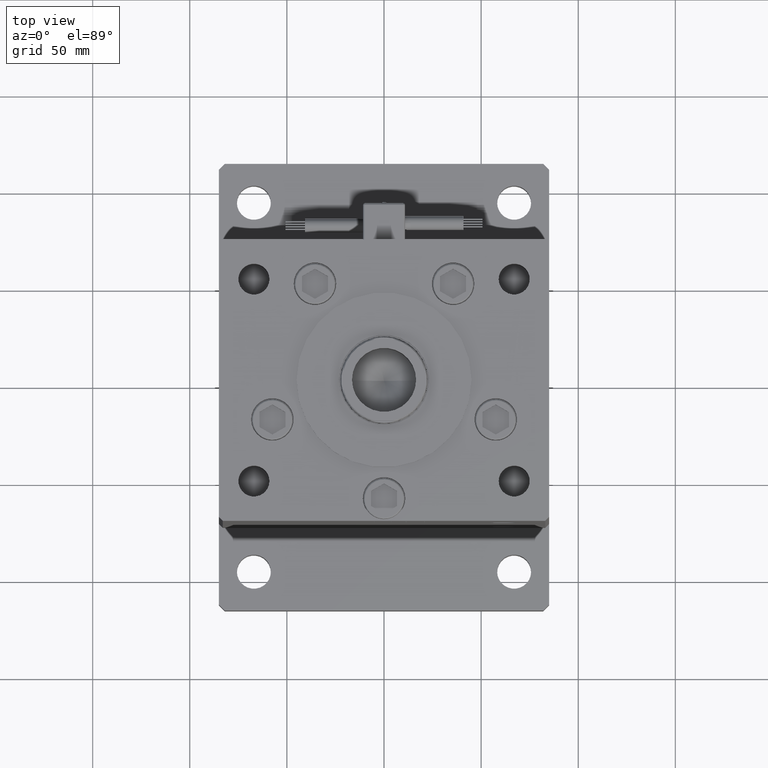
[diagram: clean part render]
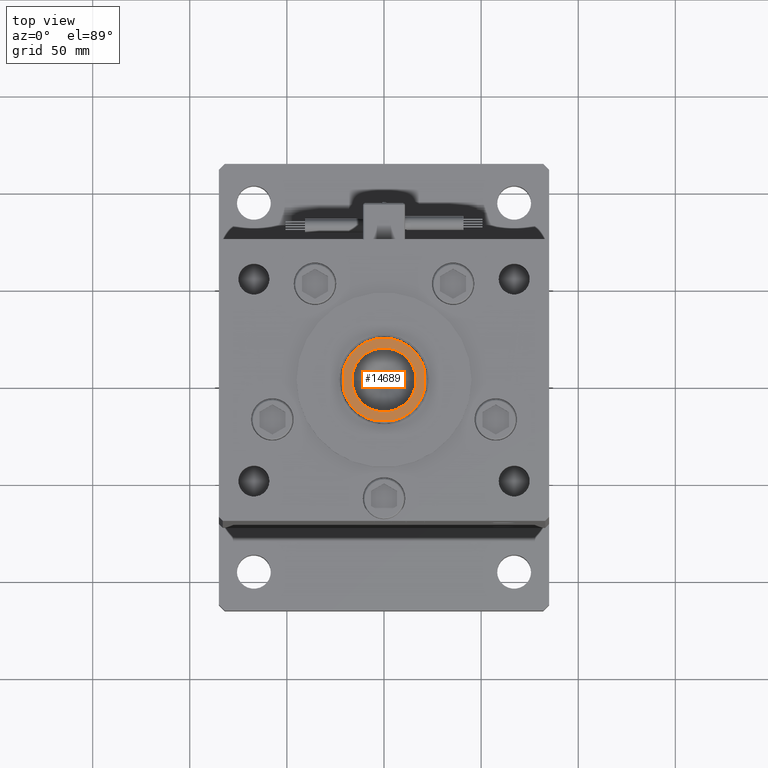
[diagram: same view with one face highlighted and labeled with its STEP entity id]
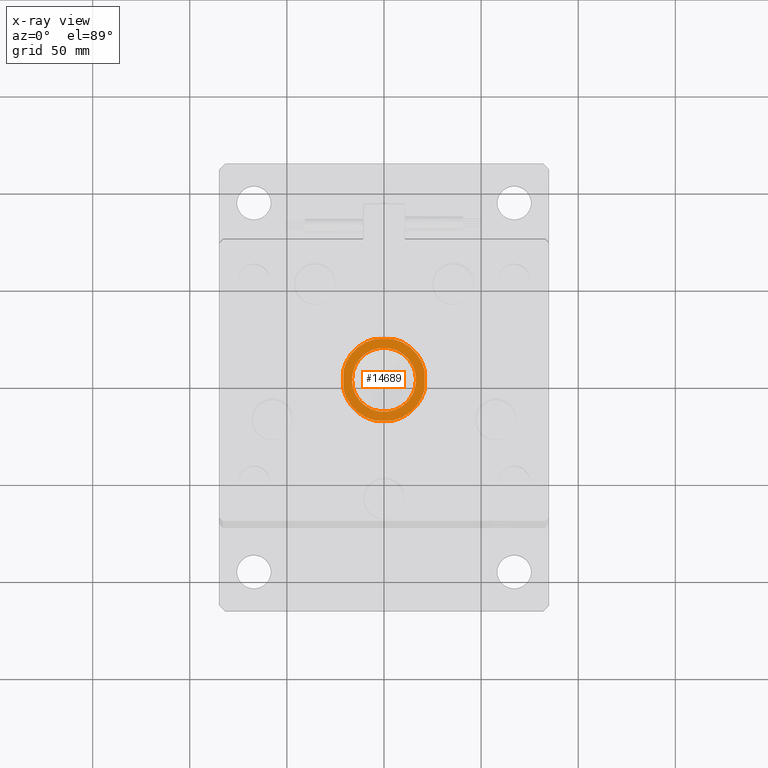
[diagram: x-ray of the same camera — body ghosted, the highlighted face saturated]
A machine part, top view. The second image highlights one B-rep face of the part: STEP entity #14689.
The next image is the same camera in x-ray: the body ghosted, the highlighted face saturated — about 0% of this face is hidden behind the body in this view.
In plain terms, the highlighted planar face has unit normal (-0, -0, -1).
Its self-contained STEP definition (entity closure, byte-faithful):
#199 = AXIS2_PLACEMENT_3D ( 'NONE', #7462, #1759, #41991 ) ;
#741 = LINE ( 'NONE', #22692, #17622 ) ;
#791 = PLANE ( 'NONE',  #29108 ) ;
#1527 = VERTEX_POINT ( 'NONE', #35150 ) ;
#1759 = DIRECTION ( 'NONE',  ( 1.000000000000000000, -9.892608450469889463E-18, -0.000000000000000000 ) ) ;
#2018 = EDGE_LOOP ( 'NONE', ( #23919, #21748 ) ) ;
#3435 = EDGE_CURVE ( 'NONE', #30955, #1527, #35192, .T. ) ;
#3703 = ORIENTED_EDGE ( 'NONE', *, *, #46899, .F. ) ;
#4154 = AXIS2_PLACEMENT_3D ( 'NONE', #53669, #45697, #32845 ) ;
#4508 = ORIENTED_EDGE ( 'NONE', *, *, #25075, .T. ) ;
#6182 = VECTOR ( 'NONE', #26910, 1000.000000000000000 ) ;
#6868 = CIRCLE ( 'NONE', #45108, 21.50000000000003197 ) ;
#7090 = VERTEX_POINT ( 'NONE', #13060 ) ;
#7462 = CARTESIAN_POINT ( 'NONE',  ( -9.354552823796321327E-16, -1.734723475976807094E-15, 0.000000000000000000 ) ) ;
#7483 = CIRCLE ( 'NONE', #14755, 21.50000000000005329 ) ;
#8746 = CIRCLE ( 'NONE', #42425, 16.49999999999999645 ) ;
#11399 = DIRECTION ( 'NONE',  ( 0.000000000000000000, 0.000000000000000000, -1.000000000000000000 ) ) ;
#13006 = CARTESIAN_POINT ( 'NONE',  ( -9.354552823796321327E-16, -1.734723475976807094E-15, 0.000000000000000000 ) ) ;
#13060 = CARTESIAN_POINT ( 'NONE',  ( -8.459618471312234096E-15, 20.99999999999999645, -4.609772228646707326 ) ) ;
#14689 = ADVANCED_FACE ( 'NONE', ( #27301, #53790 ), #791, .F. ) ;
#14726 = DIRECTION ( 'NONE',  ( -1.000000000000000000, 9.892608450469889463E-18, 0.000000000000000000 ) ) ;
#14755 = AXIS2_PLACEMENT_3D ( 'NONE', #52702, #31322, #26763 ) ;
#15710 = VERTEX_POINT ( 'NONE', #41633 ) ;
#17622 = VECTOR ( 'NONE', #26138, 1000.000000000000000 ) ;
#17907 = ORIENTED_EDGE ( 'NONE', *, *, #34429, .T. ) ;
#19002 = CARTESIAN_POINT ( 'NONE',  ( -7.178178964692945368E-16, 22.00000000000000000, 0.000000000000000000 ) ) ;
#19547 = VECTOR ( 'NONE', #36109, 1000.000000000000000 ) ;
#19600 = CARTESIAN_POINT ( 'NONE',  ( -1.856995918761978208E-15, 4.609772228646669134, 21.00000000000000000 ) ) ;
#19950 = ORIENTED_EDGE ( 'NONE', *, *, #50023, .T. ) ;
#19955 = DIRECTION ( 'NONE',  ( 1.000000000000000000, -0.000000000000000000, -0.000000000000000000 ) ) ;
#19959 = EDGE_CURVE ( 'NONE', #27857, #7090, #7483, .T. ) ;
#20904 = DIRECTION ( 'NONE',  ( -9.892608450469884841E-18, -1.000000000000000000, 0.000000000000000000 ) ) ;
#21082 = CARTESIAN_POINT ( 'NONE',  ( -1.408343819019455979E-15, 0.000000000000000000, -16.49999999999999645 ) ) ;
#21748 = ORIENTED_EDGE ( 'NONE', *, *, #36380, .F. ) ;
#21934 = CARTESIAN_POINT ( 'NONE',  ( -1.856995918761988463E-15, 4.609772228646695780, -21.00000000000000000 ) ) ;
#22209 = VECTOR ( 'NONE', #22836, 1000.000000000000000 ) ;
#22692 = CARTESIAN_POINT ( 'NONE',  ( -2.641591812603792071E-15, 6.557438524301998584, -21.00000000000000000 ) ) ;
#22836 = DIRECTION ( 'NONE',  ( -4.028389748243922571E-16, 1.000000000000000000, 0.000000000000000000 ) ) ;
#22877 = VERTEX_POINT ( 'NONE', #34101 ) ;
#23034 = CARTESIAN_POINT ( 'NONE',  ( 1.856995918761804659E-15, -4.609772228646239256, -20.99999999999999645 ) ) ;
#23919 = ORIENTED_EDGE ( 'NONE', *, *, #32246, .F. ) ;
#24105 = LINE ( 'NONE', #49223, #19547 ) ;
#24907 = ORIENTED_EDGE ( 'NONE', *, *, #19959, .T. ) ;
#25075 = EDGE_CURVE ( 'NONE', #30955, #52256, #44866, .T. ) ;
#25187 = AXIS2_PLACEMENT_3D ( 'NONE', #13006, #25568, #26141 ) ;
#25276 = EDGE_LOOP ( 'NONE', ( #54409, #17907, #3703, #19950, #52186, #4508, #56263, #24907 ) ) ;
#25568 = DIRECTION ( 'NONE',  ( 1.000000000000000000, -9.892608450469889463E-18, -0.000000000000000000 ) ) ;
#26138 = DIRECTION ( 'NONE',  ( 4.028389748243922078E-16, -1.000000000000000000, 2.645428500088697400E-16 ) ) ;
#26141 = DIRECTION ( 'NONE',  ( -9.892608450469884841E-18, -1.000000000000000000, 1.776356839400250267E-15 ) ) ;
#26763 = DIRECTION ( 'NONE',  ( -9.892608450469894085E-18, -1.000000000000000000, 0.000000000000000000 ) ) ;
#26910 = DIRECTION ( 'NONE',  ( 0.000000000000000000, 0.000000000000000000, 1.000000000000000000 ) ) ;
#27301 = FACE_BOUND ( 'NONE', #2018, .T. ) ;
#27857 = VERTEX_POINT ( 'NONE', #21934 ) ;
#28845 = VERTEX_POINT ( 'NONE', #45084 ) ;
#29039 = VERTEX_POINT ( 'NONE', #21082 ) ;
#29108 = AXIS2_PLACEMENT_3D ( 'NONE', #19002, #14726, #36147 ) ;
#29471 = DIRECTION ( 'NONE',  ( 1.000000000000000000, -9.892608450469889463E-18, -0.000000000000000000 ) ) ;
#30955 = VERTEX_POINT ( 'NONE', #43817 ) ;
#31322 = DIRECTION ( 'NONE',  ( 1.000000000000000000, -9.892608450469889463E-18, -0.000000000000000000 ) ) ;
#32246 = EDGE_CURVE ( 'NONE', #29039, #28845, #36015, .T. ) ;
#32845 = DIRECTION ( 'NONE',  ( 0.000000000000000000, 0.000000000000000000, -1.000000000000000000 ) ) ;
#34101 = CARTESIAN_POINT ( 'NONE',  ( 1.856995918761941921E-15, -4.609772228646580317, 21.00000000000000000 ) ) ;
#34429 = EDGE_CURVE ( 'NONE', #15710, #36630, #53381, .T. ) ;
#35150 = CARTESIAN_POINT ( 'NONE',  ( 8.459618471312235674E-15, -21.00000000000000000, 4.609772228646590975 ) ) ;
#35192 = LINE ( 'NONE', #52575, #6182 ) ;
#36015 = CIRCLE ( 'NONE', #4154, 16.49999999999999645 ) ;
#36109 = DIRECTION ( 'NONE',  ( 1.174806252319225930E-31, -2.645428500088697400E-16, -1.000000000000000000 ) ) ;
#36147 = DIRECTION ( 'NONE',  ( -9.892608450469889463E-18, -1.000000000000000000, 0.000000000000000000 ) ) ;
#36380 = EDGE_CURVE ( 'NONE', #28845, #29039, #8746, .T. ) ;
#36630 = VERTEX_POINT ( 'NONE', #19600 ) ;
#41633 = CARTESIAN_POINT ( 'NONE',  ( -8.459618471312235674E-15, 21.00000000000000000, 4.609772228646679793 ) ) ;
#41991 = DIRECTION ( 'NONE',  ( -9.892608450469884841E-18, -1.000000000000000000, 0.000000000000000000 ) ) ;
#42425 = AXIS2_PLACEMENT_3D ( 'NONE', #55030, #19955, #11399 ) ;
#43817 = CARTESIAN_POINT ( 'NONE',  ( 8.459618471312235674E-15, -21.00000000000000000, -4.609772228646232151 ) ) ;
#44539 = CARTESIAN_POINT ( 'NONE',  ( 2.641591812603788522E-15, -6.557438524301989702, 21.00000000000000000 ) ) ;
#44866 = CIRCLE ( 'NONE', #199, 21.49999999999995737 ) ;
#45077 = EDGE_CURVE ( 'NONE', #27857, #52256, #741, .T. ) ;
#45084 = CARTESIAN_POINT ( 'NONE',  ( -1.408343819019455979E-15, 2.020667218593132706E-15, 16.49999999999999645 ) ) ;
#45108 = AXIS2_PLACEMENT_3D ( 'NONE', #55686, #29471, #20904 ) ;
#45697 = DIRECTION ( 'NONE',  ( 1.000000000000000000, -0.000000000000000000, -0.000000000000000000 ) ) ;
#46899 = EDGE_CURVE ( 'NONE', #22877, #36630, #53618, .T. ) ;
#49223 = CARTESIAN_POINT ( 'NONE',  ( -8.459618471312235674E-15, 21.00000000000000000, 6.557438524301996807 ) ) ;
#50023 = EDGE_CURVE ( 'NONE', #22877, #1527, #6868, .T. ) ;
#52186 = ORIENTED_EDGE ( 'NONE', *, *, #3435, .F. ) ;
#52256 = VERTEX_POINT ( 'NONE', #23034 ) ;
#52575 = CARTESIAN_POINT ( 'NONE',  ( 8.459618471312235674E-15, -21.00000000000000000, -6.557438524301999472 ) ) ;
#52702 = CARTESIAN_POINT ( 'NONE',  ( -9.354552823796321327E-16, -1.734723475976807094E-15, 0.000000000000000000 ) ) ;
#53381 = CIRCLE ( 'NONE', #25187, 21.50000000000005329 ) ;
#53618 = LINE ( 'NONE', #44539, #22209 ) ;
#53669 = CARTESIAN_POINT ( 'NONE',  ( -1.408343819019455979E-15, 0.000000000000000000, 0.000000000000000000 ) ) ;
#53790 = FACE_OUTER_BOUND ( 'NONE', #25276, .T. ) ;
#53829 = EDGE_CURVE ( 'NONE', #15710, #7090, #24105, .T. ) ;
#54409 = ORIENTED_EDGE ( 'NONE', *, *, #53829, .F. ) ;
#55030 = CARTESIAN_POINT ( 'NONE',  ( -1.408343819019455979E-15, 0.000000000000000000, 0.000000000000000000 ) ) ;
#55686 = CARTESIAN_POINT ( 'NONE',  ( -9.354552823796321327E-16, -1.734723475976807094E-15, 0.000000000000000000 ) ) ;
#56263 = ORIENTED_EDGE ( 'NONE', *, *, #45077, .F. ) ;